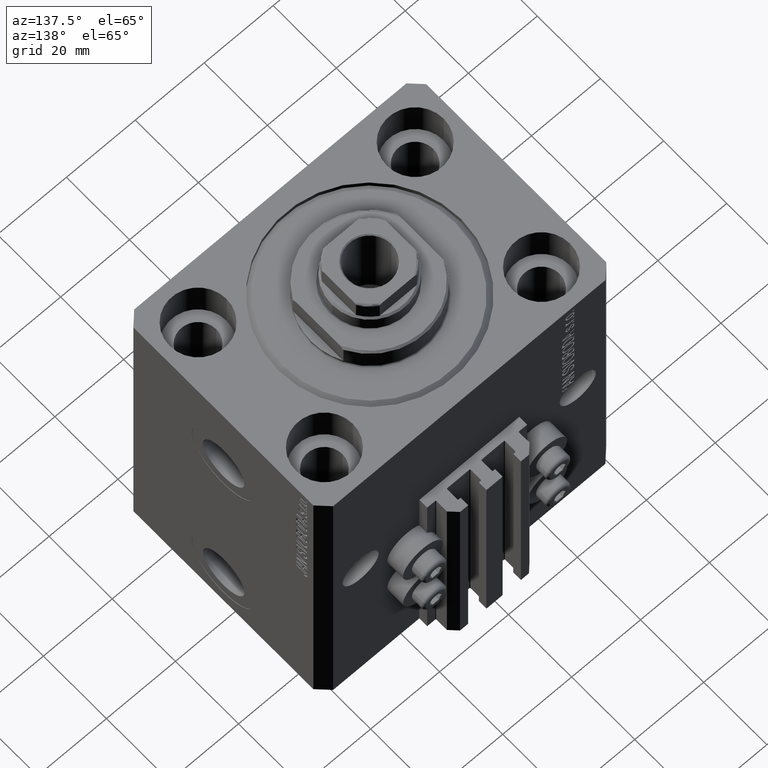
[diagram: clean part render]
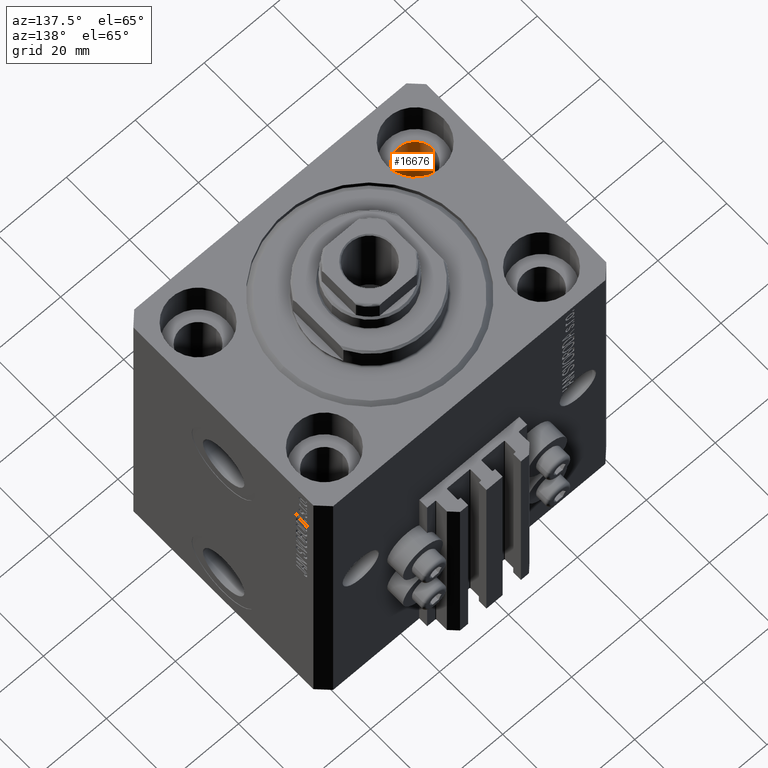
[diagram: same view with one face highlighted and labeled with its STEP entity id]
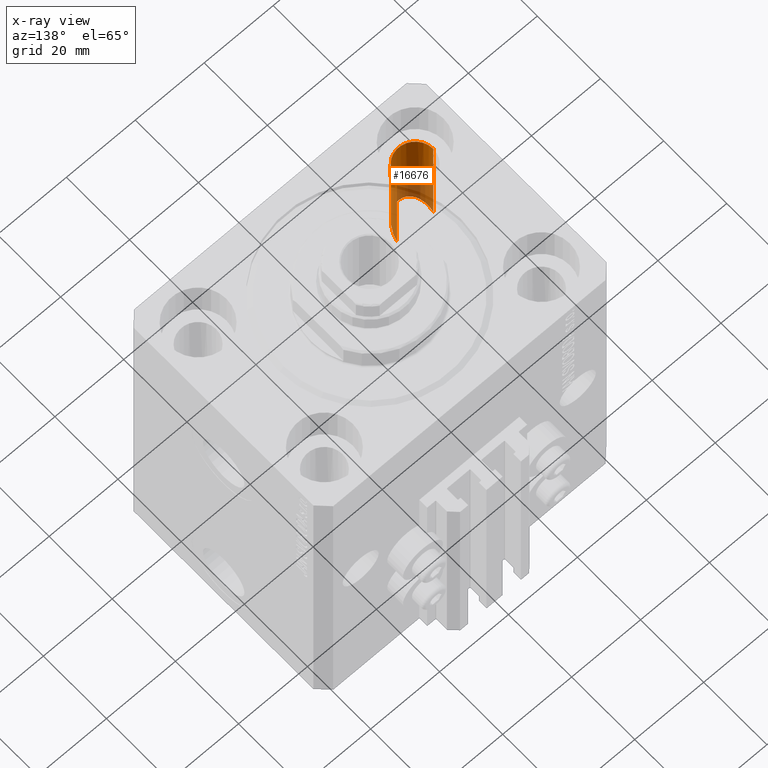
[diagram: x-ray of the same camera — body ghosted, the highlighted face saturated]
A machine part, auxiliary view. The second image highlights one B-rep face of the part: STEP entity #16676.
The next image is the same camera in x-ray: the body ghosted, the highlighted face saturated — about 48% of this face is hidden behind the body in this view.
In plain terms, the highlighted cylindrical surface (edge-blend (fillet) strip) has radius 5.25 mm, axis along (0, 0, 1).
Its self-contained STEP definition (entity closure, byte-faithful):
#706 = ORIENTED_EDGE ( 'NONE', *, *, #15016, .T. ) ;
#709 = LINE ( 'NONE', #8663, #12142 ) ;
#2245 = CARTESIAN_POINT ( 'NONE',  ( -26.24999999999999645, -20.00000000000000355, -43.00000000000000000 ) ) ;
#5160 = CARTESIAN_POINT ( 'NONE',  ( -26.25000000000000000, -20.00000000000000000, -11.00000000000000000 ) ) ;
#6364 = ORIENTED_EDGE ( 'NONE', *, *, #21560, .T. ) ;
#8663 = CARTESIAN_POINT ( 'NONE',  ( -26.25000000000000000, -20.00000000000000000, -93.00000000000000000 ) ) ;
#11018 = DIRECTION ( 'NONE',  ( -0.000000000000000000, -0.000000000000000000, 1.000000000000000000 ) ) ;
#12142 = VECTOR ( 'NONE', #19232, 1000.000000000000000 ) ;
#12489 = CARTESIAN_POINT ( 'NONE',  ( -36.75000000000000000, -20.00000000000000000, -11.00000000000000000 ) ) ;
#14186 = EDGE_CURVE ( 'NONE', #38851, #27407, #16315, .T. ) ;
#15016 = EDGE_CURVE ( 'NONE', #27407, #30773, #37455, .T. ) ;
#16315 =( BOUNDED_CURVE ( )  B_SPLINE_CURVE ( 3, ( #2245, #16935, #31601, #20053 ),
 .UNSPECIFIED., .F., .F. ) 
 B_SPLINE_CURVE_WITH_KNOTS ( ( 4, 4 ),
 ( 4.712388980384689674, 7.853981633974482790 ),
 .UNSPECIFIED. ) 
 CURVE ( )  GEOMETRIC_REPRESENTATION_ITEM ( )  RATIONAL_B_SPLINE_CURVE ( ( 1.000000000000000000, 0.3333333333333333703, 0.3333333333333333703, 1.000000000000000000 ) ) 
 REPRESENTATION_ITEM ( '' )  );
#16676 = ADVANCED_FACE ( 'NONE', ( #28376 ), #36548, .F. ) ;
#16935 = CARTESIAN_POINT ( 'NONE',  ( -26.24999999999999645, -30.49999999999999645, -32.50000000000001421 ) ) ;
#19232 = DIRECTION ( 'NONE',  ( -0.000000000000000000, -0.000000000000000000, 1.000000000000000000 ) ) ;
#20053 = CARTESIAN_POINT ( 'NONE',  ( -36.74999999999999289, -20.00000000000000355, -43.00000000000000000 ) ) ;
#21560 = EDGE_CURVE ( 'NONE', #30773, #35638, #39510, .T. ) ;
#21863 = DIRECTION ( 'NONE',  ( 1.000000000000000000, 0.000000000000000000, 0.000000000000000000 ) ) ;
#25001 = DIRECTION ( 'NONE',  ( -0.000000000000000000, -0.000000000000000000, 1.000000000000000000 ) ) ;
#27407 = VERTEX_POINT ( 'NONE', #38660 ) ;
#28376 = FACE_OUTER_BOUND ( 'NONE', #41641, .T. ) ;
#29802 = CARTESIAN_POINT ( 'NONE',  ( -26.24999999999999645, -20.00000000000000355, -43.00000000000000000 ) ) ;
#30773 = VERTEX_POINT ( 'NONE', #12489 ) ;
#31601 = CARTESIAN_POINT ( 'NONE',  ( -36.74999999999999289, -30.49999999999999645, -32.50000000000001421 ) ) ;
#35638 = VERTEX_POINT ( 'NONE', #5160 ) ;
#36548 = CYLINDRICAL_SURFACE ( 'NONE', #40105, 5.250000000000000888 ) ;
#37016 = DIRECTION ( 'NONE',  ( 0.000000000000000000, 0.000000000000000000, 1.000000000000000000 ) ) ;
#37204 = AXIS2_PLACEMENT_3D ( 'NONE', #40627, #37016, #21863 ) ;
#37455 = LINE ( 'NONE', #43988, #41624 ) ;
#38550 = ORIENTED_EDGE ( 'NONE', *, *, #14186, .T. ) ;
#38660 = CARTESIAN_POINT ( 'NONE',  ( -36.74999999999999289, -20.00000000000000355, -43.00000000000000000 ) ) ;
#38851 = VERTEX_POINT ( 'NONE', #29802 ) ;
#39510 = CIRCLE ( 'NONE', #37204, 5.250000000000000888 ) ;
#39925 = DIRECTION ( 'NONE',  ( 1.000000000000000000, 0.000000000000000000, 0.000000000000000000 ) ) ;
#40105 = AXIS2_PLACEMENT_3D ( 'NONE', #47625, #25001, #39925 ) ;
#40515 = EDGE_CURVE ( 'NONE', #38851, #35638, #709, .T. ) ;
#40627 = CARTESIAN_POINT ( 'NONE',  ( -31.50000000000000000, -20.00000000000000000, -11.00000000000000000 ) ) ;
#40879 = ORIENTED_EDGE ( 'NONE', *, *, #40515, .F. ) ;
#41624 = VECTOR ( 'NONE', #11018, 1000.000000000000000 ) ;
#41641 = EDGE_LOOP ( 'NONE', ( #38550, #706, #6364, #40879 ) ) ;
#43988 = CARTESIAN_POINT ( 'NONE',  ( -36.75000000000000000, -20.00000000000000000, -93.00000000000000000 ) ) ;
#47625 = CARTESIAN_POINT ( 'NONE',  ( -31.50000000000000000, -20.00000000000000000, -93.00000000000000000 ) ) ;